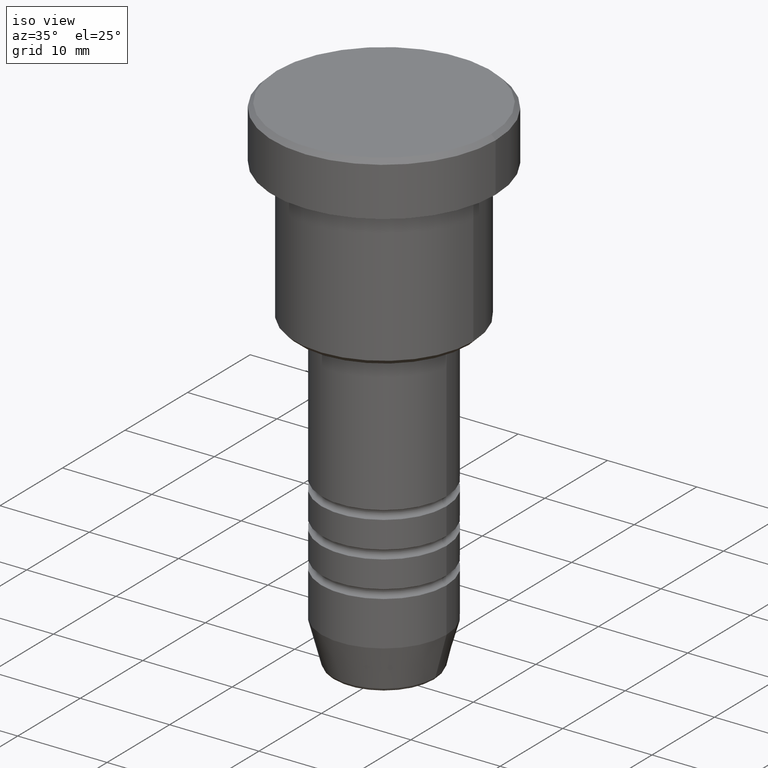
[diagram: clean part render]
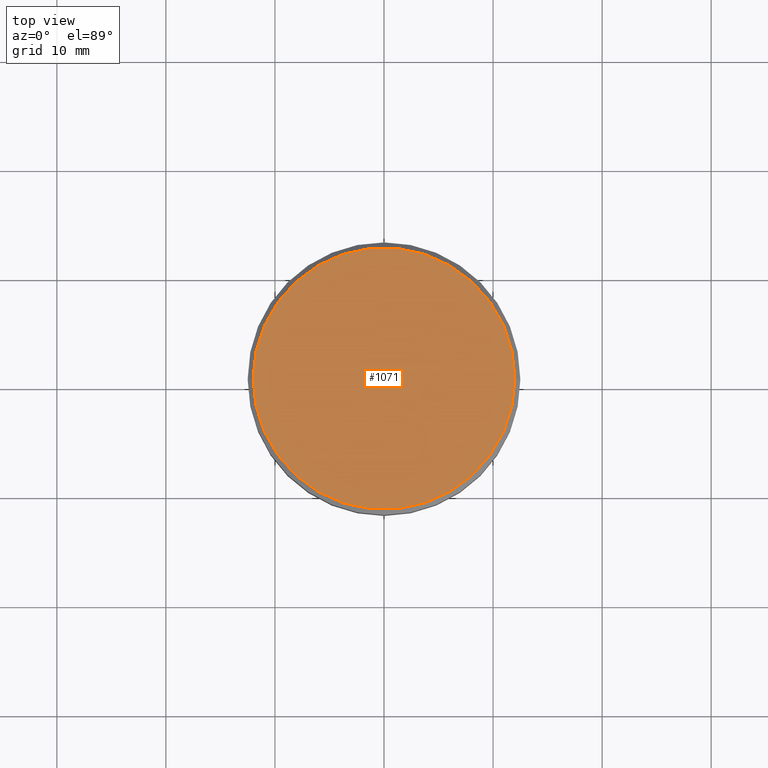
[diagram: tour spotlight — one face highlighted and labeled with its STEP entity id]
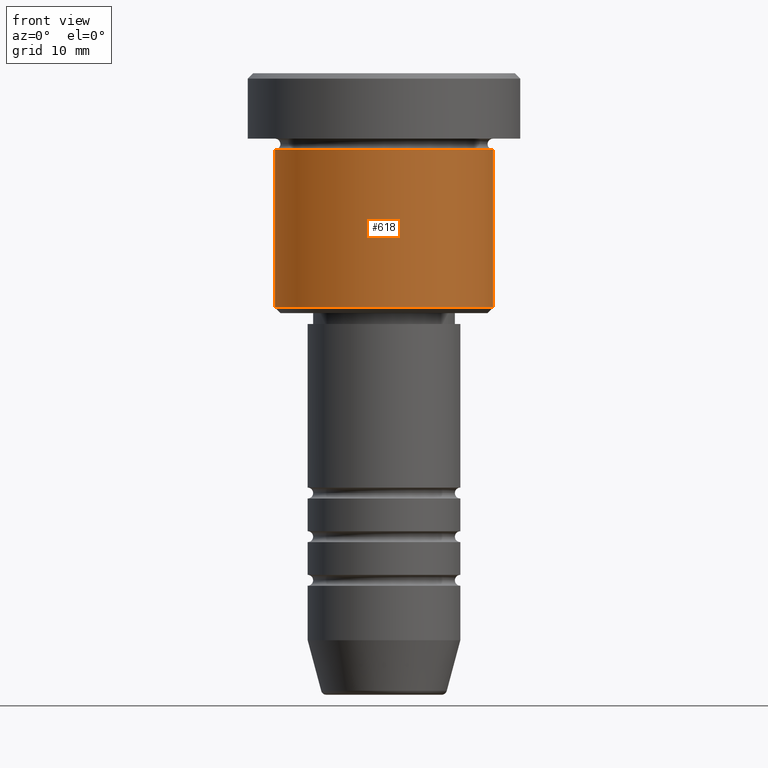
[diagram: tour spotlight — one face highlighted and labeled with its STEP entity id]
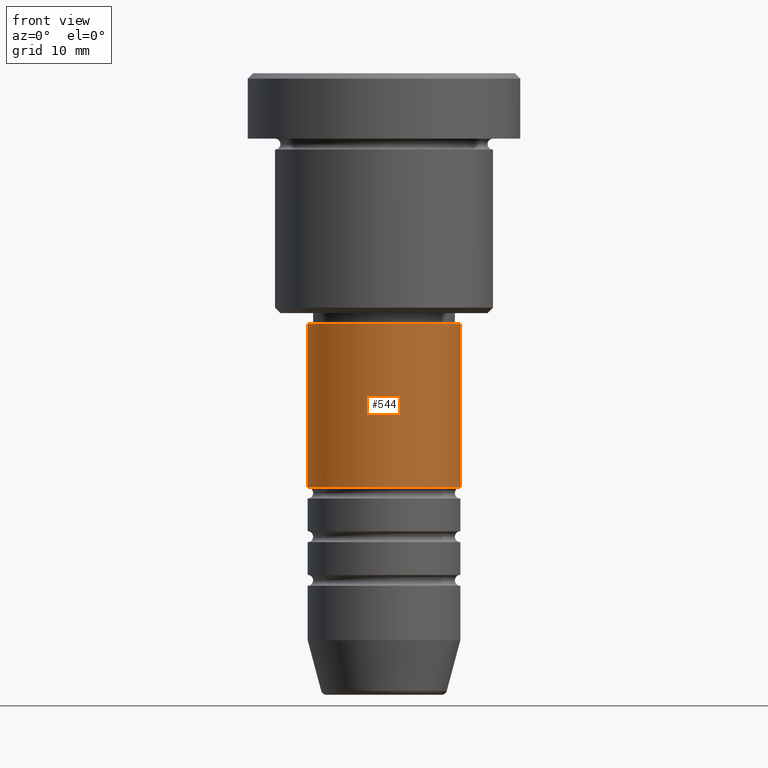
[diagram: tour spotlight — one face highlighted and labeled with its STEP entity id]
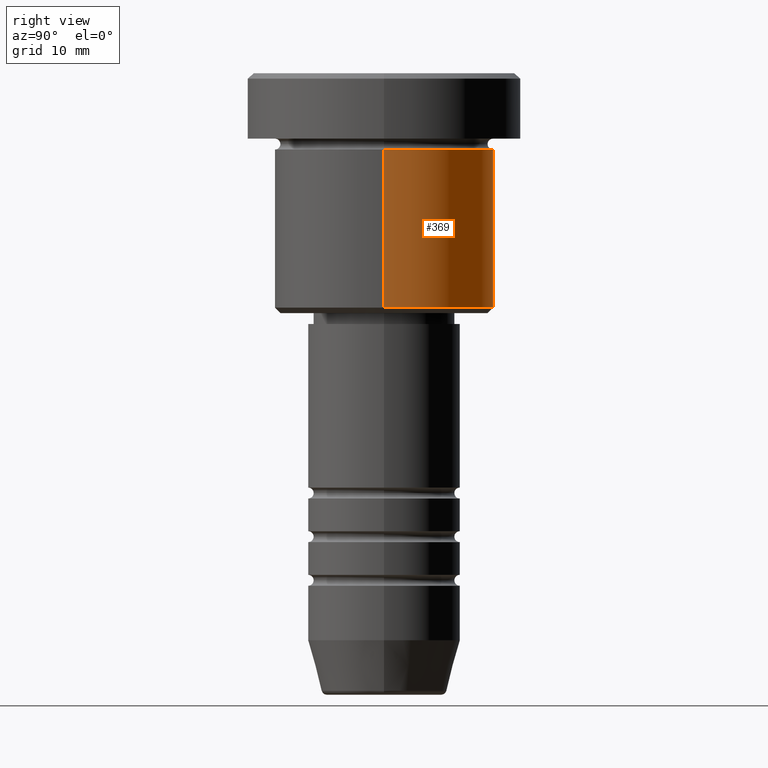
[diagram: tour spotlight — one face highlighted and labeled with its STEP entity id]
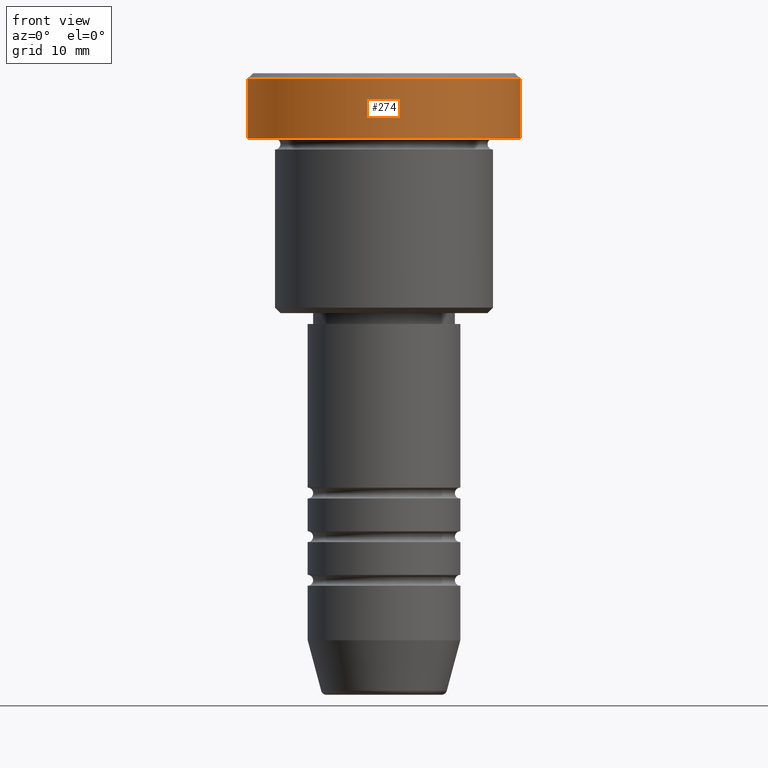
[diagram: tour spotlight — one face highlighted and labeled with its STEP entity id]
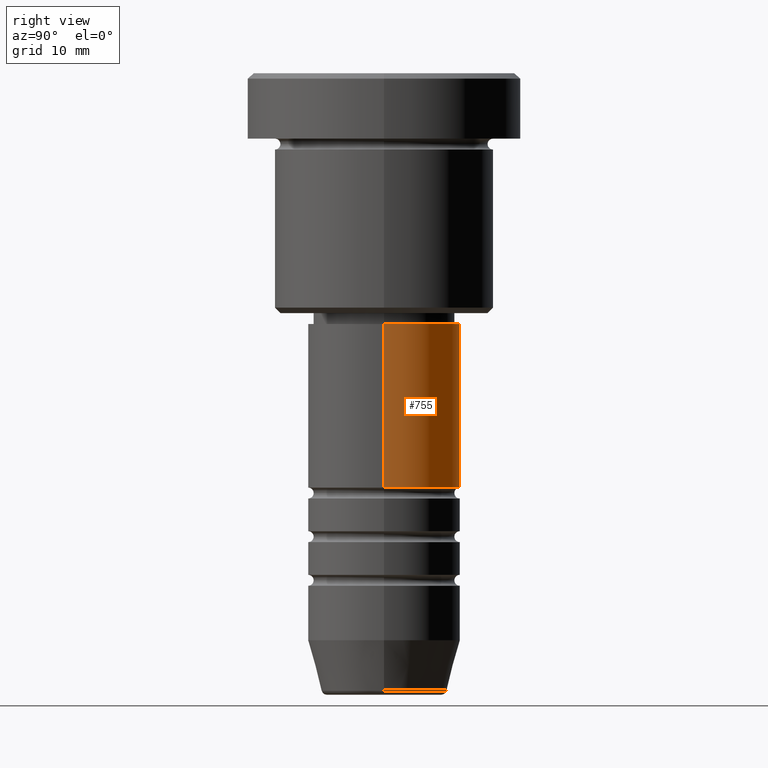
[diagram: tour spotlight — one face highlighted and labeled with its STEP entity id]
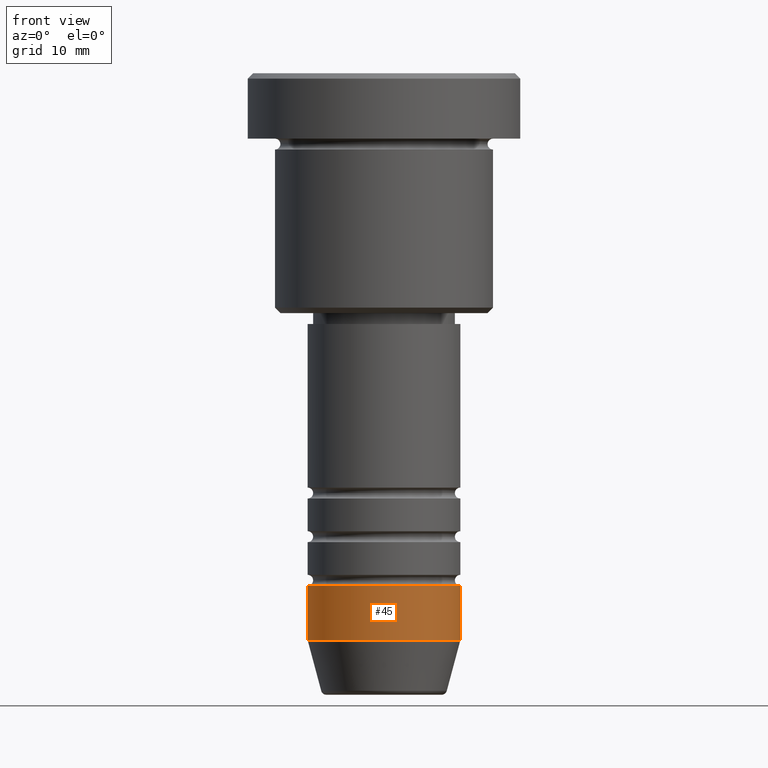
[diagram: tour spotlight — one face highlighted and labeled with its STEP entity id]
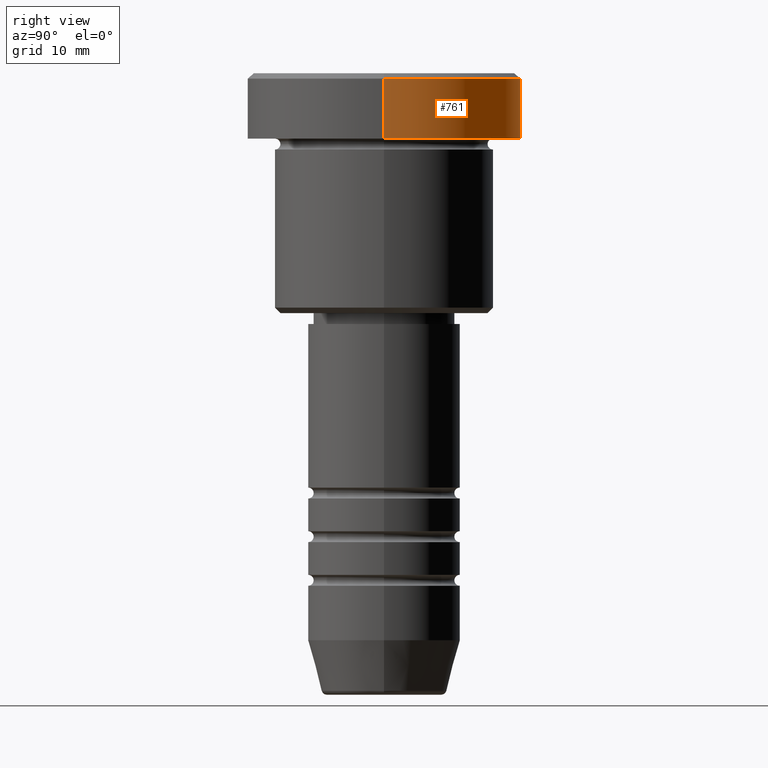
[diagram: tour spotlight — one face highlighted and labeled with its STEP entity id]
A machine part: a face-by-face anatomy tour. The part has 43 B-rep faces; the first image is the clean iso view, then the 8 largest visible faces are spotlighted one at a time (largest first), each with its STEP entity span.

Face 1 — top view, entity #1071. In plain terms, the highlighted planar face has unit normal (0, -0, 1).
Definition (entity closure, byte-faithful):
#1 = DIRECTION ( 'NONE',  ( -0.000000000000000000, -0.000000000000000000, 1.000000000000000000 ) ) ;
#32 = DIRECTION ( 'NONE',  ( -0.000000000000000000, -0.000000000000000000, 1.000000000000000000 ) ) ;
#39 = FACE_OUTER_BOUND ( 'NONE', #493, .T. ) ;
#61 = CIRCLE ( 'NONE', #1108, 12.00000000000001066 ) ;
#73 = EDGE_CURVE ( 'NONE', #941, #645, #310, .T. ) ;
#231 = CARTESIAN_POINT ( 'NONE',  ( 0.000000000000000000, 0.000000000000000000, 0.000000000000000000 ) ) ;
#310 = CIRCLE ( 'NONE', #1173, 12.00000000000001066 ) ;
#316 = DIRECTION ( 'NONE',  ( 1.000000000000000000, 0.000000000000000000, 0.000000000000000000 ) ) ;
#375 = DIRECTION ( 'NONE',  ( 1.000000000000000000, 0.000000000000000000, 0.000000000000000000 ) ) ;
#478 = CARTESIAN_POINT ( 'NONE',  ( 12.00000000000001066, 1.500192328955508326E-15, 0.000000000000000000 ) ) ;
#481 = CARTESIAN_POINT ( 'NONE',  ( -12.00000000000001066, 0.000000000000000000, 0.000000000000000000 ) ) ;
#492 = CARTESIAN_POINT ( 'NONE',  ( 0.000000000000000000, 0.000000000000000000, 0.000000000000000000 ) ) ;
#493 = EDGE_LOOP ( 'NONE', ( #950, #1051 ) ) ;
#605 = DIRECTION ( 'NONE',  ( 0.000000000000000000, -0.000000000000000000, 1.000000000000000000 ) ) ;
#645 = VERTEX_POINT ( 'NONE', #481 ) ;
#790 = PLANE ( 'NONE',  #797 ) ;
#797 = AXIS2_PLACEMENT_3D ( 'NONE', #231, #605, #316 ) ;
#833 = CARTESIAN_POINT ( 'NONE',  ( 0.000000000000000000, 0.000000000000000000, 0.000000000000000000 ) ) ;
#941 = VERTEX_POINT ( 'NONE', #478 ) ;
#950 = ORIENTED_EDGE ( 'NONE', *, *, #959, .T. ) ;
#959 = EDGE_CURVE ( 'NONE', #645, #941, #61, .T. ) ;
#1051 = ORIENTED_EDGE ( 'NONE', *, *, #73, .T. ) ;
#1071 = ADVANCED_FACE ( 'NONE', ( #39 ), #790, .T. ) ;
#1108 = AXIS2_PLACEMENT_3D ( 'NONE', #833, #1, #375 ) ;
#1143 = DIRECTION ( 'NONE',  ( 1.000000000000000000, 0.000000000000000000, 0.000000000000000000 ) ) ;
#1173 = AXIS2_PLACEMENT_3D ( 'NONE', #492, #32, #1143 ) ;

Face 2 — front view, entity #618. In plain terms, the highlighted cylindrical surface (partial cylindrical patch) has radius 10 mm, axis along (-0, -0, 1).
Definition (entity closure, byte-faithful):
#12 = EDGE_CURVE ( 'NONE', #673, #522, #1085, .T. ) ;
#22 = DIRECTION ( 'NONE',  ( 1.000000000000000000, 0.000000000000000000, 0.000000000000000000 ) ) ;
#46 = AXIS2_PLACEMENT_3D ( 'NONE', #203, #691, #216 ) ;
#68 = CARTESIAN_POINT ( 'NONE',  ( 10.00000000000000000, 0.000000000000000000, 0.000000000000000000 ) ) ;
#103 = DIRECTION ( 'NONE',  ( 1.000000000000000000, 0.000000000000000000, 0.000000000000000000 ) ) ;
#116 = VERTEX_POINT ( 'NONE', #191 ) ;
#118 = CARTESIAN_POINT ( 'NONE',  ( 10.00000000000000000, 0.000000000000000000, -6.999999999999996447 ) ) ;
#159 = AXIS2_PLACEMENT_3D ( 'NONE', #938, #1111, #103 ) ;
#163 = VECTOR ( 'NONE', #1002, 1000.000000000000000 ) ;
#191 = CARTESIAN_POINT ( 'NONE',  ( -10.00000000000000000, 1.224646799147353256E-15, -6.999999999999996447 ) ) ;
#203 = CARTESIAN_POINT ( 'NONE',  ( 0.000000000000000000, 0.000000000000000000, -21.49999999999999289 ) ) ;
#206 = CARTESIAN_POINT ( 'NONE',  ( -10.00000000000000000, 1.224646799147353256E-15, -21.49999999999999289 ) ) ;
#216 = DIRECTION ( 'NONE',  ( -1.000000000000000000, 0.000000000000000000, 0.000000000000000000 ) ) ;
#221 = CYLINDRICAL_SURFACE ( 'NONE', #902, 10.00000000000000000 ) ;
#251 = FACE_OUTER_BOUND ( 'NONE', #912, .T. ) ;
#255 = ORIENTED_EDGE ( 'NONE', *, *, #460, .T. ) ;
#402 = EDGE_CURVE ( 'NONE', #673, #116, #439, .T. ) ;
#439 = LINE ( 'NONE', #520, #1156 ) ;
#460 = EDGE_CURVE ( 'NONE', #522, #648, #900, .T. ) ;
#520 = CARTESIAN_POINT ( 'NONE',  ( -10.00000000000000000, 1.224646799147353256E-15, 0.000000000000000000 ) ) ;
#522 = VERTEX_POINT ( 'NONE', #789 ) ;
#587 = CIRCLE ( 'NONE', #159, 10.00000000000000000 ) ;
#618 = ADVANCED_FACE ( 'NONE', ( #251 ), #221, .T. ) ;
#648 = VERTEX_POINT ( 'NONE', #118 ) ;
#673 = VERTEX_POINT ( 'NONE', #206 ) ;
#677 = DIRECTION ( 'NONE',  ( -0.000000000000000000, -0.000000000000000000, 1.000000000000000000 ) ) ;
#691 = DIRECTION ( 'NONE',  ( -0.000000000000000000, -0.000000000000000000, 1.000000000000000000 ) ) ;
#771 = ORIENTED_EDGE ( 'NONE', *, *, #12, .T. ) ;
#789 = CARTESIAN_POINT ( 'NONE',  ( 10.00000000000000000, 0.000000000000000000, -21.49999999999999289 ) ) ;
#806 = DIRECTION ( 'NONE',  ( -0.000000000000000000, -0.000000000000000000, 1.000000000000000000 ) ) ;
#865 = ORIENTED_EDGE ( 'NONE', *, *, #927, .F. ) ;
#892 = ORIENTED_EDGE ( 'NONE', *, *, #402, .F. ) ;
#900 = LINE ( 'NONE', #68, #163 ) ;
#902 = AXIS2_PLACEMENT_3D ( 'NONE', #957, #677, #22 ) ;
#912 = EDGE_LOOP ( 'NONE', ( #892, #771, #255, #865 ) ) ;
#927 = EDGE_CURVE ( 'NONE', #116, #648, #587, .T. ) ;
#938 = CARTESIAN_POINT ( 'NONE',  ( 0.000000000000000000, 0.000000000000000000, -6.999999999999996447 ) ) ;
#957 = CARTESIAN_POINT ( 'NONE',  ( 0.000000000000000000, 0.000000000000000000, 0.000000000000000000 ) ) ;
#1002 = DIRECTION ( 'NONE',  ( -0.000000000000000000, -0.000000000000000000, 1.000000000000000000 ) ) ;
#1085 = CIRCLE ( 'NONE', #46, 10.00000000000000000 ) ;
#1111 = DIRECTION ( 'NONE',  ( -0.000000000000000000, -0.000000000000000000, 1.000000000000000000 ) ) ;
#1156 = VECTOR ( 'NONE', #806, 1000.000000000000000 ) ;

Face 3 — front view, entity #544. In plain terms, the highlighted cylindrical surface (partial cylindrical patch) has radius 7 mm, axis along (-0, -0, 1).
Definition (entity closure, byte-faithful):
#28 = FACE_OUTER_BOUND ( 'NONE', #1013, .T. ) ;
#36 = DIRECTION ( 'NONE',  ( -0.000000000000000000, -0.000000000000000000, 1.000000000000000000 ) ) ;
#40 = DIRECTION ( 'NONE',  ( -0.000000000000000000, -0.000000000000000000, 1.000000000000000000 ) ) ;
#114 = EDGE_CURVE ( 'NONE', #682, #769, #644, .T. ) ;
#136 = DIRECTION ( 'NONE',  ( -0.000000000000000000, -0.000000000000000000, 1.000000000000000000 ) ) ;
#185 = DIRECTION ( 'NONE',  ( -0.000000000000000000, -0.000000000000000000, 1.000000000000000000 ) ) ;
#229 = EDGE_CURVE ( 'NONE', #1176, #769, #728, .T. ) ;
#239 = CARTESIAN_POINT ( 'NONE',  ( -7.000000000000000000, 8.572527594031473190E-16, -23.00000000000000000 ) ) ;
#241 = CARTESIAN_POINT ( 'NONE',  ( -7.000000000000000888, 8.572527594031474176E-16, -37.99999999999989342 ) ) ;
#359 = VECTOR ( 'NONE', #136, 1000.000000000000000 ) ;
#405 = DIRECTION ( 'NONE',  ( 1.000000000000000000, 0.000000000000000000, 0.000000000000000000 ) ) ;
#443 = VERTEX_POINT ( 'NONE', #241 ) ;
#544 = ADVANCED_FACE ( 'NONE', ( #28 ), #562, .T. ) ;
#550 = AXIS2_PLACEMENT_3D ( 'NONE', #869, #36, #405 ) ;
#553 = ORIENTED_EDGE ( 'NONE', *, *, #114, .T. ) ;
#561 = EDGE_CURVE ( 'NONE', #443, #1176, #696, .T. ) ;
#562 = CYLINDRICAL_SURFACE ( 'NONE', #591, 7.000000000000000888 ) ;
#591 = AXIS2_PLACEMENT_3D ( 'NONE', #874, #40, #870 ) ;
#644 = LINE ( 'NONE', #926, #763 ) ;
#682 = VERTEX_POINT ( 'NONE', #962 ) ;
#696 = LINE ( 'NONE', #967, #359 ) ;
#719 = CARTESIAN_POINT ( 'NONE',  ( 7.000000000000000000, 0.000000000000000000, -23.00000000000000000 ) ) ;
#728 = CIRCLE ( 'NONE', #550, 7.000000000000000000 ) ;
#752 = ORIENTED_EDGE ( 'NONE', *, *, #229, .F. ) ;
#763 = VECTOR ( 'NONE', #185, 1000.000000000000000 ) ;
#769 = VERTEX_POINT ( 'NONE', #719 ) ;
#856 = ORIENTED_EDGE ( 'NONE', *, *, #561, .F. ) ;
#857 = AXIS2_PLACEMENT_3D ( 'NONE', #1054, #1145, #971 ) ;
#869 = CARTESIAN_POINT ( 'NONE',  ( 0.000000000000000000, 0.000000000000000000, -23.00000000000000000 ) ) ;
#870 = DIRECTION ( 'NONE',  ( 1.000000000000000000, 0.000000000000000000, 0.000000000000000000 ) ) ;
#874 = CARTESIAN_POINT ( 'NONE',  ( 0.000000000000000000, 0.000000000000000000, 0.000000000000000000 ) ) ;
#926 = CARTESIAN_POINT ( 'NONE',  ( 7.000000000000000888, 0.000000000000000000, 0.000000000000000000 ) ) ;
#962 = CARTESIAN_POINT ( 'NONE',  ( 7.000000000000000888, 0.000000000000000000, -37.99999999999989342 ) ) ;
#967 = CARTESIAN_POINT ( 'NONE',  ( -7.000000000000000888, 8.572527594031474176E-16, 0.000000000000000000 ) ) ;
#971 = DIRECTION ( 'NONE',  ( 1.000000000000000000, 0.000000000000000000, 0.000000000000000000 ) ) ;
#1013 = EDGE_LOOP ( 'NONE', ( #856, #1029, #553, #752 ) ) ;
#1029 = ORIENTED_EDGE ( 'NONE', *, *, #1101, .T. ) ;
#1044 = CIRCLE ( 'NONE', #857, 7.000000000000000888 ) ;
#1054 = CARTESIAN_POINT ( 'NONE',  ( 0.000000000000000000, 0.000000000000000000, -37.99999999999989342 ) ) ;
#1101 = EDGE_CURVE ( 'NONE', #443, #682, #1044, .T. ) ;
#1145 = DIRECTION ( 'NONE',  ( -0.000000000000000000, -0.000000000000000000, 1.000000000000000000 ) ) ;
#1176 = VERTEX_POINT ( 'NONE', #239 ) ;

Face 4 — right view, entity #369. In plain terms, the highlighted cylindrical surface (partial cylindrical patch) has radius 10 mm, axis along (-0, -0, 1).
Definition (entity closure, byte-faithful):
#9 = DIRECTION ( 'NONE',  ( 1.000000000000000000, 0.000000000000000000, 0.000000000000000000 ) ) ;
#13 = CARTESIAN_POINT ( 'NONE',  ( 0.000000000000000000, 0.000000000000000000, -6.999999999999996447 ) ) ;
#68 = CARTESIAN_POINT ( 'NONE',  ( 10.00000000000000000, 0.000000000000000000, 0.000000000000000000 ) ) ;
#87 = ORIENTED_EDGE ( 'NONE', *, *, #972, .F. ) ;
#116 = VERTEX_POINT ( 'NONE', #191 ) ;
#118 = CARTESIAN_POINT ( 'NONE',  ( 10.00000000000000000, 0.000000000000000000, -6.999999999999996447 ) ) ;
#163 = VECTOR ( 'NONE', #1002, 1000.000000000000000 ) ;
#172 = AXIS2_PLACEMENT_3D ( 'NONE', #13, #1122, #9 ) ;
#182 = DIRECTION ( 'NONE',  ( 1.000000000000000000, 0.000000000000000000, 0.000000000000000000 ) ) ;
#191 = CARTESIAN_POINT ( 'NONE',  ( -10.00000000000000000, 1.224646799147353256E-15, -6.999999999999996447 ) ) ;
#206 = CARTESIAN_POINT ( 'NONE',  ( -10.00000000000000000, 1.224646799147353256E-15, -21.49999999999999289 ) ) ;
#211 = CIRCLE ( 'NONE', #172, 10.00000000000000000 ) ;
#278 = DIRECTION ( 'NONE',  ( -0.000000000000000000, -0.000000000000000000, 1.000000000000000000 ) ) ;
#364 = EDGE_CURVE ( 'NONE', #522, #673, #936, .T. ) ;
#368 = DIRECTION ( 'NONE',  ( -1.000000000000000000, 0.000000000000000000, 0.000000000000000000 ) ) ;
#369 = ADVANCED_FACE ( 'NONE', ( #559 ), #1006, .T. ) ;
#402 = EDGE_CURVE ( 'NONE', #673, #116, #439, .T. ) ;
#439 = LINE ( 'NONE', #520, #1156 ) ;
#460 = EDGE_CURVE ( 'NONE', #522, #648, #900, .T. ) ;
#502 = EDGE_LOOP ( 'NONE', ( #939, #595, #87, #659 ) ) ;
#520 = CARTESIAN_POINT ( 'NONE',  ( -10.00000000000000000, 1.224646799147353256E-15, 0.000000000000000000 ) ) ;
#522 = VERTEX_POINT ( 'NONE', #789 ) ;
#559 = FACE_OUTER_BOUND ( 'NONE', #502, .T. ) ;
#595 = ORIENTED_EDGE ( 'NONE', *, *, #402, .T. ) ;
#648 = VERTEX_POINT ( 'NONE', #118 ) ;
#659 = ORIENTED_EDGE ( 'NONE', *, *, #460, .F. ) ;
#673 = VERTEX_POINT ( 'NONE', #206 ) ;
#789 = CARTESIAN_POINT ( 'NONE',  ( 10.00000000000000000, 0.000000000000000000, -21.49999999999999289 ) ) ;
#806 = DIRECTION ( 'NONE',  ( -0.000000000000000000, -0.000000000000000000, 1.000000000000000000 ) ) ;
#824 = DIRECTION ( 'NONE',  ( -0.000000000000000000, -0.000000000000000000, 1.000000000000000000 ) ) ;
#829 = CARTESIAN_POINT ( 'NONE',  ( 0.000000000000000000, 0.000000000000000000, 0.000000000000000000 ) ) ;
#882 = AXIS2_PLACEMENT_3D ( 'NONE', #829, #278, #182 ) ;
#900 = LINE ( 'NONE', #68, #163 ) ;
#936 = CIRCLE ( 'NONE', #1024, 10.00000000000000000 ) ;
#939 = ORIENTED_EDGE ( 'NONE', *, *, #364, .T. ) ;
#972 = EDGE_CURVE ( 'NONE', #648, #116, #211, .T. ) ;
#1002 = DIRECTION ( 'NONE',  ( -0.000000000000000000, -0.000000000000000000, 1.000000000000000000 ) ) ;
#1006 = CYLINDRICAL_SURFACE ( 'NONE', #882, 10.00000000000000000 ) ;
#1012 = CARTESIAN_POINT ( 'NONE',  ( 0.000000000000000000, 0.000000000000000000, -21.49999999999999289 ) ) ;
#1024 = AXIS2_PLACEMENT_3D ( 'NONE', #1012, #824, #368 ) ;
#1122 = DIRECTION ( 'NONE',  ( -0.000000000000000000, -0.000000000000000000, 1.000000000000000000 ) ) ;
#1156 = VECTOR ( 'NONE', #806, 1000.000000000000000 ) ;

Face 5 — front view, entity #274. In plain terms, the highlighted cylindrical surface (partial cylindrical patch) has radius 12.5 mm, axis along (-0, -0, 1).
Definition (entity closure, byte-faithful):
#8 = AXIS2_PLACEMENT_3D ( 'NONE', #974, #633, #1069 ) ;
#19 = VERTEX_POINT ( 'NONE', #408 ) ;
#24 = VERTEX_POINT ( 'NONE', #1036 ) ;
#34 = DIRECTION ( 'NONE',  ( 1.000000000000000000, 0.000000000000000000, 0.000000000000000000 ) ) ;
#60 = EDGE_CURVE ( 'NONE', #750, #661, #417, .T. ) ;
#65 = CIRCLE ( 'NONE', #655, 12.50000000000000000 ) ;
#137 = DIRECTION ( 'NONE',  ( -0.000000000000000000, -0.000000000000000000, 1.000000000000000000 ) ) ;
#152 = CARTESIAN_POINT ( 'NONE',  ( -12.50000000000000000, 1.530808498934191521E-15, -5.999999999999996447 ) ) ;
#158 = CYLINDRICAL_SURFACE ( 'NONE', #1087, 12.50000000000000000 ) ;
#173 = VECTOR ( 'NONE', #388, 1000.000000000000000 ) ;
#236 = CARTESIAN_POINT ( 'NONE',  ( 0.000000000000000000, 0.000000000000000000, 0.000000000000000000 ) ) ;
#274 = ADVANCED_FACE ( 'NONE', ( #639 ), #158, .T. ) ;
#340 = CARTESIAN_POINT ( 'NONE',  ( 12.50000000000000000, 0.000000000000000000, 0.000000000000000000 ) ) ;
#387 = CARTESIAN_POINT ( 'NONE',  ( -12.50000000000000000, 1.530808498934191521E-15, -0.4999999999999917843 ) ) ;
#388 = DIRECTION ( 'NONE',  ( -0.000000000000000000, -0.000000000000000000, 1.000000000000000000 ) ) ;
#408 = CARTESIAN_POINT ( 'NONE',  ( 12.50000000000000000, 0.000000000000000000, -5.999999999999996447 ) ) ;
#417 = LINE ( 'NONE', #782, #173 ) ;
#447 = EDGE_CURVE ( 'NONE', #19, #24, #977, .T. ) ;
#490 = CIRCLE ( 'NONE', #8, 12.50000000000000000 ) ;
#505 = EDGE_CURVE ( 'NONE', #24, #661, #65, .T. ) ;
#524 = DIRECTION ( 'NONE',  ( 1.000000000000000000, 0.000000000000000000, 0.000000000000000000 ) ) ;
#581 = ORIENTED_EDGE ( 'NONE', *, *, #60, .F. ) ;
#616 = VECTOR ( 'NONE', #137, 1000.000000000000000 ) ;
#633 = DIRECTION ( 'NONE',  ( -0.000000000000000000, -0.000000000000000000, 1.000000000000000000 ) ) ;
#639 = FACE_OUTER_BOUND ( 'NONE', #725, .T. ) ;
#655 = AXIS2_PLACEMENT_3D ( 'NONE', #970, #694, #34 ) ;
#661 = VERTEX_POINT ( 'NONE', #387 ) ;
#694 = DIRECTION ( 'NONE',  ( 0.000000000000000000, 0.000000000000000000, -1.000000000000000000 ) ) ;
#725 = EDGE_LOOP ( 'NONE', ( #581, #853, #770, #1042 ) ) ;
#750 = VERTEX_POINT ( 'NONE', #152 ) ;
#770 = ORIENTED_EDGE ( 'NONE', *, *, #447, .T. ) ;
#782 = CARTESIAN_POINT ( 'NONE',  ( -12.50000000000000000, 1.530808498934191521E-15, 0.000000000000000000 ) ) ;
#793 = DIRECTION ( 'NONE',  ( -0.000000000000000000, -0.000000000000000000, 1.000000000000000000 ) ) ;
#825 = EDGE_CURVE ( 'NONE', #750, #19, #490, .T. ) ;
#853 = ORIENTED_EDGE ( 'NONE', *, *, #825, .T. ) ;
#970 = CARTESIAN_POINT ( 'NONE',  ( 0.000000000000000000, 0.000000000000000000, -0.4999999999999917843 ) ) ;
#974 = CARTESIAN_POINT ( 'NONE',  ( 0.000000000000000000, 0.000000000000000000, -5.999999999999996447 ) ) ;
#977 = LINE ( 'NONE', #340, #616 ) ;
#1036 = CARTESIAN_POINT ( 'NONE',  ( 12.50000000000000000, 0.000000000000000000, -0.4999999999999917843 ) ) ;
#1042 = ORIENTED_EDGE ( 'NONE', *, *, #505, .T. ) ;
#1069 = DIRECTION ( 'NONE',  ( 1.000000000000000000, 0.000000000000000000, 0.000000000000000000 ) ) ;
#1087 = AXIS2_PLACEMENT_3D ( 'NONE', #236, #793, #524 ) ;

Face 6 — right view, entity #755. In plain terms, the highlighted cylindrical surface (partial cylindrical patch) has radius 7 mm, axis along (-0, -0, 1).
Definition (entity closure, byte-faithful):
#54 = DIRECTION ( 'NONE',  ( -0.000000000000000000, -0.000000000000000000, 1.000000000000000000 ) ) ;
#76 = CYLINDRICAL_SURFACE ( 'NONE', #933, 7.000000000000000888 ) ;
#109 = ORIENTED_EDGE ( 'NONE', *, *, #561, .T. ) ;
#114 = EDGE_CURVE ( 'NONE', #682, #769, #644, .T. ) ;
#136 = DIRECTION ( 'NONE',  ( -0.000000000000000000, -0.000000000000000000, 1.000000000000000000 ) ) ;
#161 = CIRCLE ( 'NONE', #549, 7.000000000000000888 ) ;
#185 = DIRECTION ( 'NONE',  ( -0.000000000000000000, -0.000000000000000000, 1.000000000000000000 ) ) ;
#226 = DIRECTION ( 'NONE',  ( 1.000000000000000000, 0.000000000000000000, 0.000000000000000000 ) ) ;
#239 = CARTESIAN_POINT ( 'NONE',  ( -7.000000000000000000, 8.572527594031473190E-16, -23.00000000000000000 ) ) ;
#241 = CARTESIAN_POINT ( 'NONE',  ( -7.000000000000000888, 8.572527594031474176E-16, -37.99999999999989342 ) ) ;
#248 = ORIENTED_EDGE ( 'NONE', *, *, #1114, .T. ) ;
#282 = DIRECTION ( 'NONE',  ( 1.000000000000000000, 0.000000000000000000, 0.000000000000000000 ) ) ;
#295 = DIRECTION ( 'NONE',  ( -0.000000000000000000, -0.000000000000000000, 1.000000000000000000 ) ) ;
#357 = CIRCLE ( 'NONE', #685, 7.000000000000000000 ) ;
#359 = VECTOR ( 'NONE', #136, 1000.000000000000000 ) ;
#404 = DIRECTION ( 'NONE',  ( 1.000000000000000000, 0.000000000000000000, 0.000000000000000000 ) ) ;
#443 = VERTEX_POINT ( 'NONE', #241 ) ;
#445 = DIRECTION ( 'NONE',  ( -0.000000000000000000, -0.000000000000000000, 1.000000000000000000 ) ) ;
#530 = ORIENTED_EDGE ( 'NONE', *, *, #114, .F. ) ;
#549 = AXIS2_PLACEMENT_3D ( 'NONE', #889, #54, #404 ) ;
#561 = EDGE_CURVE ( 'NONE', #443, #1176, #696, .T. ) ;
#573 = CARTESIAN_POINT ( 'NONE',  ( 0.000000000000000000, 0.000000000000000000, -23.00000000000000000 ) ) ;
#644 = LINE ( 'NONE', #926, #763 ) ;
#682 = VERTEX_POINT ( 'NONE', #962 ) ;
#685 = AXIS2_PLACEMENT_3D ( 'NONE', #573, #295, #282 ) ;
#696 = LINE ( 'NONE', #967, #359 ) ;
#709 = FACE_OUTER_BOUND ( 'NONE', #1031, .T. ) ;
#719 = CARTESIAN_POINT ( 'NONE',  ( 7.000000000000000000, 0.000000000000000000, -23.00000000000000000 ) ) ;
#755 = ADVANCED_FACE ( 'NONE', ( #709 ), #76, .T. ) ;
#763 = VECTOR ( 'NONE', #185, 1000.000000000000000 ) ;
#769 = VERTEX_POINT ( 'NONE', #719 ) ;
#808 = ORIENTED_EDGE ( 'NONE', *, *, #1000, .F. ) ;
#811 = CARTESIAN_POINT ( 'NONE',  ( 0.000000000000000000, 0.000000000000000000, 0.000000000000000000 ) ) ;
#889 = CARTESIAN_POINT ( 'NONE',  ( 0.000000000000000000, 0.000000000000000000, -37.99999999999989342 ) ) ;
#926 = CARTESIAN_POINT ( 'NONE',  ( 7.000000000000000888, 0.000000000000000000, 0.000000000000000000 ) ) ;
#933 = AXIS2_PLACEMENT_3D ( 'NONE', #811, #445, #226 ) ;
#962 = CARTESIAN_POINT ( 'NONE',  ( 7.000000000000000888, 0.000000000000000000, -37.99999999999989342 ) ) ;
#967 = CARTESIAN_POINT ( 'NONE',  ( -7.000000000000000888, 8.572527594031474176E-16, 0.000000000000000000 ) ) ;
#1000 = EDGE_CURVE ( 'NONE', #769, #1176, #357, .T. ) ;
#1031 = EDGE_LOOP ( 'NONE', ( #248, #109, #808, #530 ) ) ;
#1114 = EDGE_CURVE ( 'NONE', #682, #443, #161, .T. ) ;
#1176 = VERTEX_POINT ( 'NONE', #239 ) ;

Face 7 — front view, entity #45. In plain terms, the highlighted cylindrical surface (partial cylindrical patch) has radius 7 mm, axis along (-0, -0, 1).
Definition (entity closure, byte-faithful):
#15 = EDGE_CURVE ( 'NONE', #381, #818, #260, .T. ) ;
#23 = AXIS2_PLACEMENT_3D ( 'NONE', #227, #678, #42 ) ;
#42 = DIRECTION ( 'NONE',  ( 1.000000000000000000, 0.000000000000000000, 0.000000000000000000 ) ) ;
#45 = ADVANCED_FACE ( 'NONE', ( #120 ), #963, .T. ) ;
#51 = LINE ( 'NONE', #331, #1005 ) ;
#55 = LINE ( 'NONE', #342, #412 ) ;
#92 = ORIENTED_EDGE ( 'NONE', *, *, #753, .T. ) ;
#120 = FACE_OUTER_BOUND ( 'NONE', #533, .T. ) ;
#207 = DIRECTION ( 'NONE',  ( -0.000000000000000000, -0.000000000000000000, 1.000000000000000000 ) ) ;
#227 = CARTESIAN_POINT ( 'NONE',  ( 0.000000000000000000, 0.000000000000000000, -47.00000000000000711 ) ) ;
#260 = CIRCLE ( 'NONE', #23, 7.000000000000000000 ) ;
#331 = CARTESIAN_POINT ( 'NONE',  ( -7.000000000000000000, 8.572527594031473190E-16, 0.000000000000000000 ) ) ;
#342 = CARTESIAN_POINT ( 'NONE',  ( 7.000000000000000000, 0.000000000000000000, 0.000000000000000000 ) ) ;
#345 = DIRECTION ( 'NONE',  ( -0.000000000000000000, -0.000000000000000000, 1.000000000000000000 ) ) ;
#363 = CARTESIAN_POINT ( 'NONE',  ( -7.000000000000000000, 8.572527594031473190E-16, -47.00000000000000711 ) ) ;
#366 = ORIENTED_EDGE ( 'NONE', *, *, #15, .F. ) ;
#378 = AXIS2_PLACEMENT_3D ( 'NONE', #1164, #345, #701 ) ;
#381 = VERTEX_POINT ( 'NONE', #363 ) ;
#393 = AXIS2_PLACEMENT_3D ( 'NONE', #855, #207, #584 ) ;
#412 = VECTOR ( 'NONE', #1168, 1000.000000000000000 ) ;
#420 = EDGE_CURVE ( 'NONE', #470, #381, #51, .T. ) ;
#470 = VERTEX_POINT ( 'NONE', #1088 ) ;
#529 = CIRCLE ( 'NONE', #378, 7.000000000000000000 ) ;
#533 = EDGE_LOOP ( 'NONE', ( #557, #92, #995, #366 ) ) ;
#557 = ORIENTED_EDGE ( 'NONE', *, *, #420, .F. ) ;
#584 = DIRECTION ( 'NONE',  ( 1.000000000000000000, 0.000000000000000000, 0.000000000000000000 ) ) ;
#635 = VERTEX_POINT ( 'NONE', #1035 ) ;
#678 = DIRECTION ( 'NONE',  ( -0.000000000000000000, -0.000000000000000000, 1.000000000000000000 ) ) ;
#701 = DIRECTION ( 'NONE',  ( 1.000000000000000000, 0.000000000000000000, 0.000000000000000000 ) ) ;
#753 = EDGE_CURVE ( 'NONE', #470, #635, #529, .T. ) ;
#786 = DIRECTION ( 'NONE',  ( -0.000000000000000000, -0.000000000000000000, 1.000000000000000000 ) ) ;
#788 = EDGE_CURVE ( 'NONE', #635, #818, #55, .T. ) ;
#807 = CARTESIAN_POINT ( 'NONE',  ( 7.000000000000000000, 0.000000000000000000, -47.00000000000000711 ) ) ;
#818 = VERTEX_POINT ( 'NONE', #807 ) ;
#855 = CARTESIAN_POINT ( 'NONE',  ( 0.000000000000000000, 0.000000000000000000, 0.000000000000000000 ) ) ;
#963 = CYLINDRICAL_SURFACE ( 'NONE', #393, 7.000000000000000000 ) ;
#995 = ORIENTED_EDGE ( 'NONE', *, *, #788, .T. ) ;
#1005 = VECTOR ( 'NONE', #786, 1000.000000000000000 ) ;
#1035 = CARTESIAN_POINT ( 'NONE',  ( 7.000000000000000000, 0.000000000000000000, -52.00000000000000711 ) ) ;
#1088 = CARTESIAN_POINT ( 'NONE',  ( -7.000000000000000000, 8.572527594031473190E-16, -52.00000000000000711 ) ) ;
#1164 = CARTESIAN_POINT ( 'NONE',  ( 0.000000000000000000, 0.000000000000000000, -52.00000000000000711 ) ) ;
#1168 = DIRECTION ( 'NONE',  ( -0.000000000000000000, -0.000000000000000000, 1.000000000000000000 ) ) ;

Face 8 — right view, entity #761. In plain terms, the highlighted cylindrical surface (partial cylindrical patch) has radius 12.5 mm, axis along (-0, -0, 1).
Definition (entity closure, byte-faithful):
#19 = VERTEX_POINT ( 'NONE', #408 ) ;
#24 = VERTEX_POINT ( 'NONE', #1036 ) ;
#60 = EDGE_CURVE ( 'NONE', #750, #661, #417, .T. ) ;
#77 = ORIENTED_EDGE ( 'NONE', *, *, #447, .F. ) ;
#123 = AXIS2_PLACEMENT_3D ( 'NONE', #472, #764, #287 ) ;
#137 = DIRECTION ( 'NONE',  ( -0.000000000000000000, -0.000000000000000000, 1.000000000000000000 ) ) ;
#152 = CARTESIAN_POINT ( 'NONE',  ( -12.50000000000000000, 1.530808498934191521E-15, -5.999999999999996447 ) ) ;
#173 = VECTOR ( 'NONE', #388, 1000.000000000000000 ) ;
#263 = DIRECTION ( 'NONE',  ( 0.000000000000000000, 0.000000000000000000, -1.000000000000000000 ) ) ;
#287 = DIRECTION ( 'NONE',  ( 1.000000000000000000, 0.000000000000000000, 0.000000000000000000 ) ) ;
#330 = EDGE_CURVE ( 'NONE', #661, #24, #973, .T. ) ;
#340 = CARTESIAN_POINT ( 'NONE',  ( 12.50000000000000000, 0.000000000000000000, 0.000000000000000000 ) ) ;
#387 = CARTESIAN_POINT ( 'NONE',  ( -12.50000000000000000, 1.530808498934191521E-15, -0.4999999999999917843 ) ) ;
#388 = DIRECTION ( 'NONE',  ( -0.000000000000000000, -0.000000000000000000, 1.000000000000000000 ) ) ;
#408 = CARTESIAN_POINT ( 'NONE',  ( 12.50000000000000000, 0.000000000000000000, -5.999999999999996447 ) ) ;
#417 = LINE ( 'NONE', #782, #173 ) ;
#440 = DIRECTION ( 'NONE',  ( -0.000000000000000000, -0.000000000000000000, 1.000000000000000000 ) ) ;
#447 = EDGE_CURVE ( 'NONE', #19, #24, #977, .T. ) ;
#455 = AXIS2_PLACEMENT_3D ( 'NONE', #809, #263, #905 ) ;
#459 = ORIENTED_EDGE ( 'NONE', *, *, #330, .T. ) ;
#463 = EDGE_LOOP ( 'NONE', ( #964, #945, #459, #77 ) ) ;
#472 = CARTESIAN_POINT ( 'NONE',  ( 0.000000000000000000, 0.000000000000000000, -5.999999999999996447 ) ) ;
#616 = VECTOR ( 'NONE', #137, 1000.000000000000000 ) ;
#656 = CIRCLE ( 'NONE', #123, 12.50000000000000000 ) ;
#661 = VERTEX_POINT ( 'NONE', #387 ) ;
#724 = AXIS2_PLACEMENT_3D ( 'NONE', #968, #440, #990 ) ;
#750 = VERTEX_POINT ( 'NONE', #152 ) ;
#761 = ADVANCED_FACE ( 'NONE', ( #1081 ), #799, .T. ) ;
#764 = DIRECTION ( 'NONE',  ( -0.000000000000000000, -0.000000000000000000, 1.000000000000000000 ) ) ;
#782 = CARTESIAN_POINT ( 'NONE',  ( -12.50000000000000000, 1.530808498934191521E-15, 0.000000000000000000 ) ) ;
#799 = CYLINDRICAL_SURFACE ( 'NONE', #724, 12.50000000000000000 ) ;
#809 = CARTESIAN_POINT ( 'NONE',  ( 0.000000000000000000, 0.000000000000000000, -0.4999999999999917843 ) ) ;
#905 = DIRECTION ( 'NONE',  ( 1.000000000000000000, 0.000000000000000000, 0.000000000000000000 ) ) ;
#937 = EDGE_CURVE ( 'NONE', #19, #750, #656, .T. ) ;
#945 = ORIENTED_EDGE ( 'NONE', *, *, #60, .T. ) ;
#964 = ORIENTED_EDGE ( 'NONE', *, *, #937, .T. ) ;
#968 = CARTESIAN_POINT ( 'NONE',  ( 0.000000000000000000, 0.000000000000000000, 0.000000000000000000 ) ) ;
#973 = CIRCLE ( 'NONE', #455, 12.50000000000000000 ) ;
#977 = LINE ( 'NONE', #340, #616 ) ;
#990 = DIRECTION ( 'NONE',  ( 1.000000000000000000, 0.000000000000000000, 0.000000000000000000 ) ) ;
#1036 = CARTESIAN_POINT ( 'NONE',  ( 12.50000000000000000, 0.000000000000000000, -0.4999999999999917843 ) ) ;
#1081 = FACE_OUTER_BOUND ( 'NONE', #463, .T. ) ;